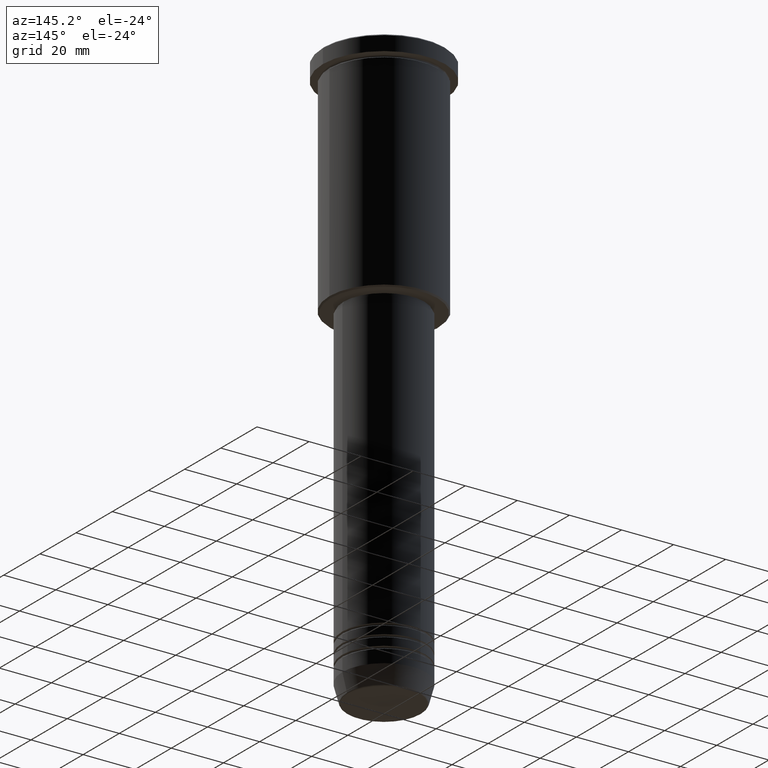
[diagram: clean part render]
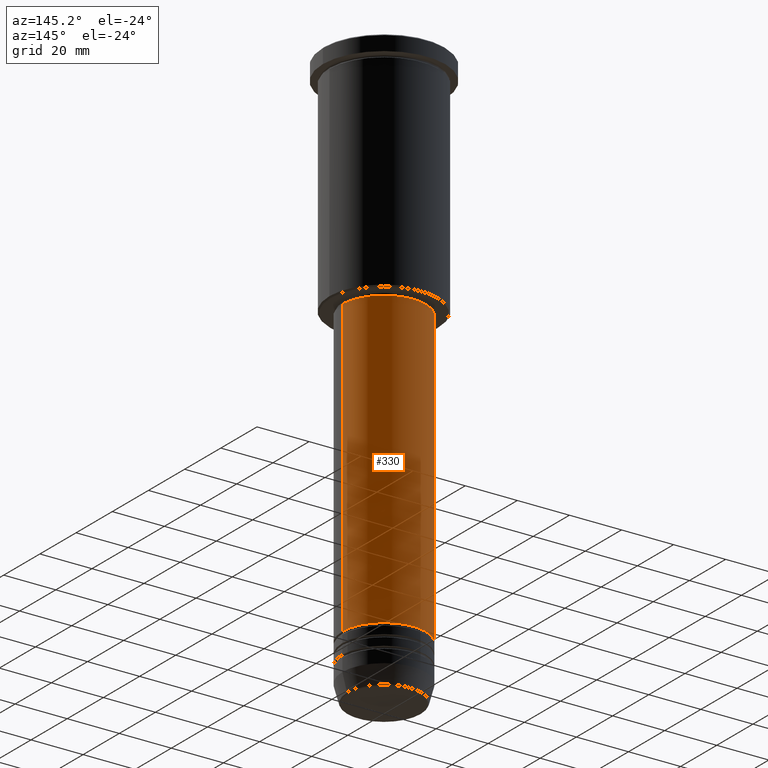
[diagram: same view with one face highlighted and labeled with its STEP entity id]
A machine part, auxiliary view. The second image highlights one B-rep face of the part: STEP entity #330.
In plain terms, the highlighted cylindrical surface (partial cylindrical patch) has radius 16 mm, axis along (-0, -0, 1).
Its self-contained STEP definition (entity closure, byte-faithful):
#30 = CYLINDRICAL_SURFACE ( 'NONE', #502, 16.00000000000000000 ) ;
#33 = ORIENTED_EDGE ( 'NONE', *, *, #542, .F. ) ;
#62 = VECTOR ( 'NONE', #672, 1000.000000000000000 ) ;
#86 = LINE ( 'NONE', #643, #762 ) ;
#119 = DIRECTION ( 'NONE',  ( -0.000000000000000000, -0.000000000000000000, 1.000000000000000000 ) ) ;
#138 = ORIENTED_EDGE ( 'NONE', *, *, #463, .F. ) ;
#157 = VERTEX_POINT ( 'NONE', #377 ) ;
#189 = EDGE_CURVE ( 'NONE', #786, #967, #86, .T. ) ;
#221 = CARTESIAN_POINT ( 'NONE',  ( 0.000000000000000000, 0.000000000000000000, 0.000000000000000000 ) ) ;
#252 = CIRCLE ( 'NONE', #1120, 16.00000000000000355 ) ;
#269 = CARTESIAN_POINT ( 'NONE',  ( 0.000000000000000000, 0.000000000000000000, -199.9999999999999147 ) ) ;
#280 = LINE ( 'NONE', #297, #62 ) ;
#297 = CARTESIAN_POINT ( 'NONE',  ( 16.00000000000000000, 0.000000000000000000, 0.000000000000000000 ) ) ;
#330 = ADVANCED_FACE ( 'NONE', ( #1036 ), #30, .T. ) ;
#333 = DIRECTION ( 'NONE',  ( 1.000000000000000000, 0.000000000000000000, 0.000000000000000000 ) ) ;
#335 = VERTEX_POINT ( 'NONE', #1157 ) ;
#377 = CARTESIAN_POINT ( 'NONE',  ( 16.00000000000000355, 0.000000000000000000, -87.00000000000004263 ) ) ;
#393 = ORIENTED_EDGE ( 'NONE', *, *, #189, .T. ) ;
#463 = EDGE_CURVE ( 'NONE', #157, #967, #252, .T. ) ;
#502 = AXIS2_PLACEMENT_3D ( 'NONE', #221, #678, #333 ) ;
#520 = DIRECTION ( 'NONE',  ( -0.000000000000000000, -0.000000000000000000, 1.000000000000000000 ) ) ;
#542 = EDGE_CURVE ( 'NONE', #335, #157, #280, .T. ) ;
#557 = CARTESIAN_POINT ( 'NONE',  ( -16.00000000000000355, 1.959434878635765526E-15, -87.00000000000004263 ) ) ;
#628 = DIRECTION ( 'NONE',  ( -0.000000000000000000, -0.000000000000000000, 1.000000000000000000 ) ) ;
#643 = CARTESIAN_POINT ( 'NONE',  ( -16.00000000000000000, 1.959434878635765131E-15, 0.000000000000000000 ) ) ;
#672 = DIRECTION ( 'NONE',  ( -0.000000000000000000, -0.000000000000000000, 1.000000000000000000 ) ) ;
#678 = DIRECTION ( 'NONE',  ( -0.000000000000000000, -0.000000000000000000, 1.000000000000000000 ) ) ;
#710 = AXIS2_PLACEMENT_3D ( 'NONE', #269, #628, #729 ) ;
#726 = CIRCLE ( 'NONE', #710, 16.00000000000000000 ) ;
#729 = DIRECTION ( 'NONE',  ( 1.000000000000000000, 0.000000000000000000, 0.000000000000000000 ) ) ;
#762 = VECTOR ( 'NONE', #520, 1000.000000000000000 ) ;
#786 = VERTEX_POINT ( 'NONE', #1172 ) ;
#793 = EDGE_CURVE ( 'NONE', #335, #786, #726, .T. ) ;
#931 = CARTESIAN_POINT ( 'NONE',  ( 0.000000000000000000, 0.000000000000000000, -87.00000000000004263 ) ) ;
#933 = EDGE_LOOP ( 'NONE', ( #1161, #393, #138, #33 ) ) ;
#936 = DIRECTION ( 'NONE',  ( 1.000000000000000000, 0.000000000000000000, 0.000000000000000000 ) ) ;
#967 = VERTEX_POINT ( 'NONE', #557 ) ;
#1036 = FACE_OUTER_BOUND ( 'NONE', #933, .T. ) ;
#1120 = AXIS2_PLACEMENT_3D ( 'NONE', #931, #119, #936 ) ;
#1157 = CARTESIAN_POINT ( 'NONE',  ( 16.00000000000000000, 0.000000000000000000, -199.9999999999999147 ) ) ;
#1161 = ORIENTED_EDGE ( 'NONE', *, *, #793, .T. ) ;
#1172 = CARTESIAN_POINT ( 'NONE',  ( -16.00000000000000000, 1.959434878635765131E-15, -199.9999999999999147 ) ) ;